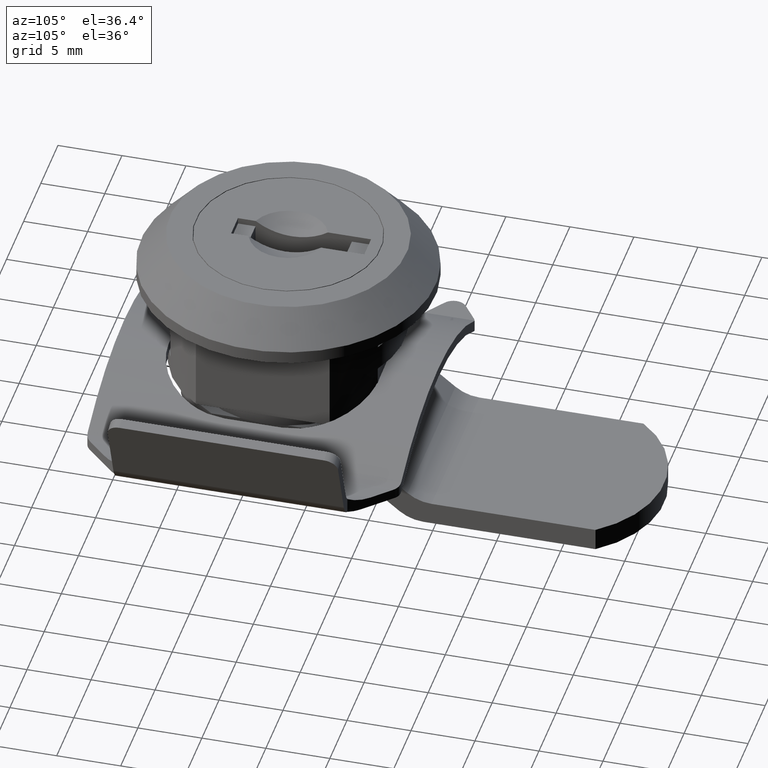
[diagram: clean part render]
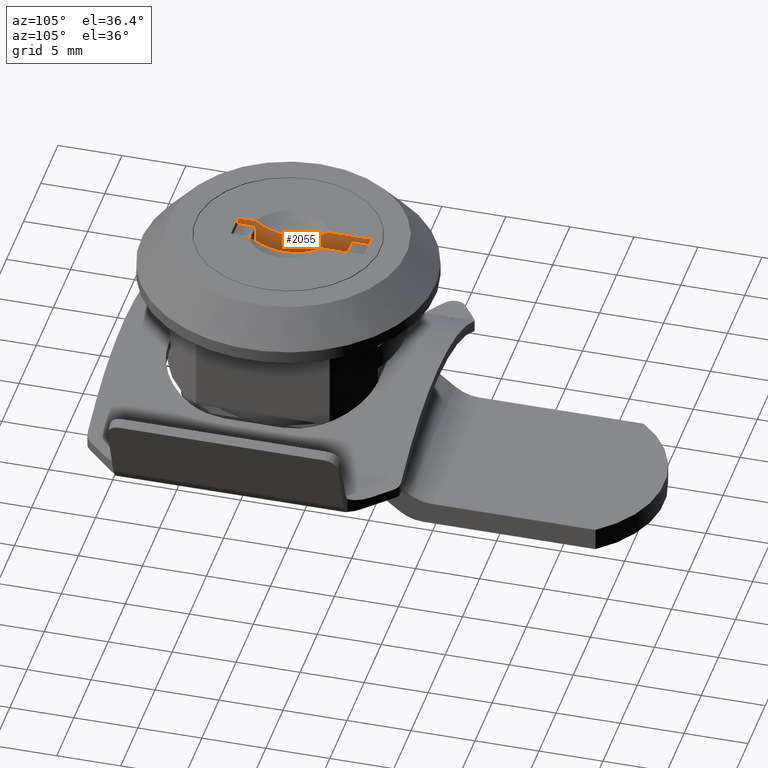
[diagram: same view with one face highlighted and labeled with its STEP entity id]
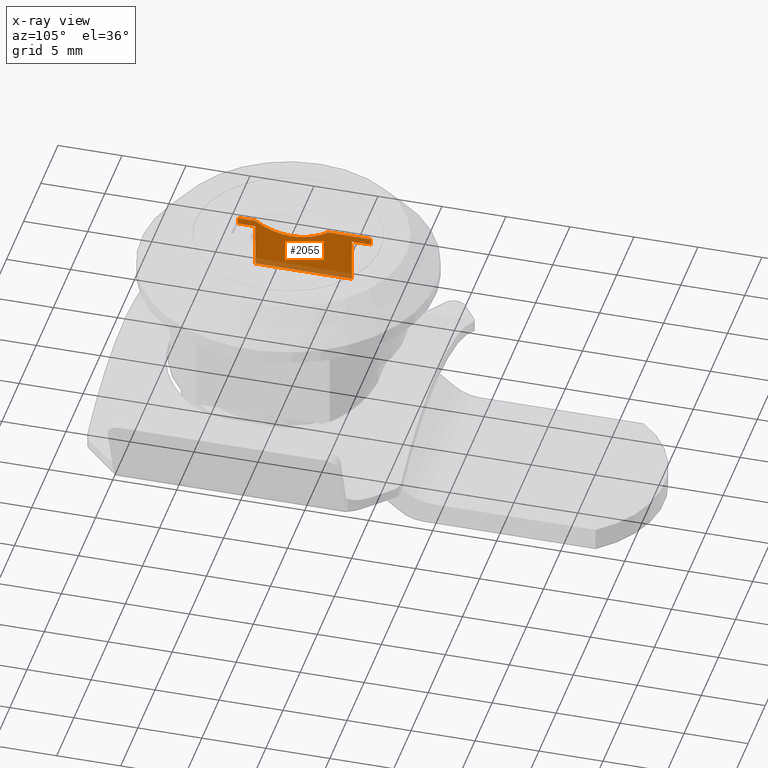
[diagram: x-ray of the same camera — body ghosted, the highlighted face saturated]
A machine part, auxiliary view. The second image highlights one B-rep face of the part: STEP entity #2055.
The next image is the same camera in x-ray: the body ghosted, the highlighted face saturated — about 14% of this face is hidden behind the body in this view.
In plain terms, the highlighted planar face has unit normal (-1, -0, 0).
Its self-contained STEP definition (entity closure, byte-faithful):
#139=FACE_OUTER_BOUND('',#259,.T.);
#259=EDGE_LOOP('',(#1406,#1407,#1408,#1409,#1410,#1411,#1412,#1413,#1414,
#1415));
#397=LINE('',#3067,#594);
#399=LINE('',#3073,#596);
#402=LINE('',#3078,#599);
#406=LINE('',#3095,#603);
#407=LINE('',#3098,#604);
#408=LINE('',#3100,#605);
#409=LINE('',#3101,#606);
#410=LINE('',#3103,#607);
#411=LINE('',#3104,#608);
#594=VECTOR('',#2440,3.5);
#596=VECTOR('',#2444,3.5);
#599=VECTOR('',#2449,7.5284271247462);
#603=VECTOR('',#2467,1.5);
#604=VECTOR('',#2470,1.3715728752538);
#605=VECTOR('',#2471,0.5);
#606=VECTOR('',#2472,1.3715728752538);
#607=VECTOR('',#2473,0.5);
#608=VECTOR('',#2474,3.3715728752538);
#782=CIRCLE('',#2189,4.89897948556636);
#868=VERTEX_POINT('',#3061);
#870=VERTEX_POINT('',#3065);
#871=VERTEX_POINT('',#3069);
#873=VERTEX_POINT('',#3072);
#877=VERTEX_POINT('',#3086);
#878=VERTEX_POINT('',#3087);
#880=VERTEX_POINT('',#3093);
#881=VERTEX_POINT('',#3097);
#882=VERTEX_POINT('',#3099);
#883=VERTEX_POINT('',#3102);
#1081=EDGE_CURVE('',#868,#870,#397,.T.);
#1083=EDGE_CURVE('',#871,#873,#399,.T.);
#1086=EDGE_CURVE('',#870,#873,#402,.T.);
#1090=EDGE_CURVE('',#877,#878,#782,.T.);
#1094=EDGE_CURVE('',#871,#880,#406,.T.);
#1095=EDGE_CURVE('',#881,#877,#407,.T.);
#1096=EDGE_CURVE('',#881,#882,#408,.T.);
#1097=EDGE_CURVE('',#882,#868,#409,.T.);
#1098=EDGE_CURVE('',#883,#880,#410,.T.);
#1099=EDGE_CURVE('',#878,#883,#411,.T.);
#1406=ORIENTED_EDGE('',*,*,#1090,.F.);
#1407=ORIENTED_EDGE('',*,*,#1095,.F.);
#1408=ORIENTED_EDGE('',*,*,#1096,.T.);
#1409=ORIENTED_EDGE('',*,*,#1097,.T.);
#1410=ORIENTED_EDGE('',*,*,#1081,.T.);
#1411=ORIENTED_EDGE('',*,*,#1086,.T.);
#1412=ORIENTED_EDGE('',*,*,#1083,.F.);
#1413=ORIENTED_EDGE('',*,*,#1094,.T.);
#1414=ORIENTED_EDGE('',*,*,#1098,.F.);
#1415=ORIENTED_EDGE('',*,*,#1099,.F.);
#1970=PLANE('',#2192);
#2055=ADVANCED_FACE('',(#139),#1970,.F.);
#2189=AXIS2_PLACEMENT_3D('',#3088,#2459,#2460);
#2192=AXIS2_PLACEMENT_3D('',#3096,#2468,#2469);
#2440=DIRECTION('',(0.,0.,-1.));
#2444=DIRECTION('',(0.,0.,-1.));
#2449=DIRECTION('',(-1.84338475724866E-16,1.,0.));
#2459=DIRECTION('center_axis',(1.,1.86816374335964E-16,0.));
#2460=DIRECTION('ref_axis',(0.,0.,-1.));
#2467=DIRECTION('',(-1.86816374335964E-16,1.,0.));
#2468=DIRECTION('center_axis',(-1.,-1.86816374335964E-16,0.));
#2469=DIRECTION('ref_axis',(-1.88737914186277E-16,1.,0.));
#2470=DIRECTION('',(-1.86816374335964E-16,1.,0.));
#2471=DIRECTION('',(0.,0.,-1.));
#2472=DIRECTION('',(-1.86816374335964E-16,1.,0.));
#2473=DIRECTION('',(0.,0.,-1.));
#2474=DIRECTION('',(-1.86816374335964E-16,1.,0.));
#3061=CARTESIAN_POINT('',(-0.999999999999999,-2.8284271247462,-0.5));
#3065=CARTESIAN_POINT('',(-0.999999999999999,-2.8284271247462,-4.));
#3067=CARTESIAN_POINT('',(-0.999999999999999,-2.8284271247462,-0.5));
#3069=CARTESIAN_POINT('',(-1.,4.7,-0.5));
#3072=CARTESIAN_POINT('',(-1.,4.7,-4.));
#3073=CARTESIAN_POINT('',(-1.,4.7,-0.5));
#3078=CARTESIAN_POINT('',(-0.999999999999999,-2.8284271247462,-4.));
#3086=CARTESIAN_POINT('',(-0.999999999999999,-2.8284271247462,0.));
#3087=CARTESIAN_POINT('',(-1.,2.8284271247462,0.));
#3088=CARTESIAN_POINT('Origin',(-0.999999999999999,-1.86816374335964E-16,
4.));
#3093=CARTESIAN_POINT('',(-1.,6.2,-0.5));
#3095=CARTESIAN_POINT('',(-0.999999999999999,-4.2,-0.5));
#3096=CARTESIAN_POINT('Origin',(-0.999999999999999,-4.2,0.));
#3097=CARTESIAN_POINT('',(-0.999999999999999,-4.2,0.));
#3098=CARTESIAN_POINT('',(-0.999999999999999,-2.1,0.));
#3099=CARTESIAN_POINT('',(-0.999999999999999,-4.2,-0.5));
#3100=CARTESIAN_POINT('',(-0.999999999999999,-4.2,0.));
#3101=CARTESIAN_POINT('',(-0.999999999999999,-4.2,-0.5));
#3102=CARTESIAN_POINT('',(-1.,6.2,0.));
#3103=CARTESIAN_POINT('',(-1.,6.2,0.));
#3104=CARTESIAN_POINT('',(-0.999999999999999,-2.1,0.));